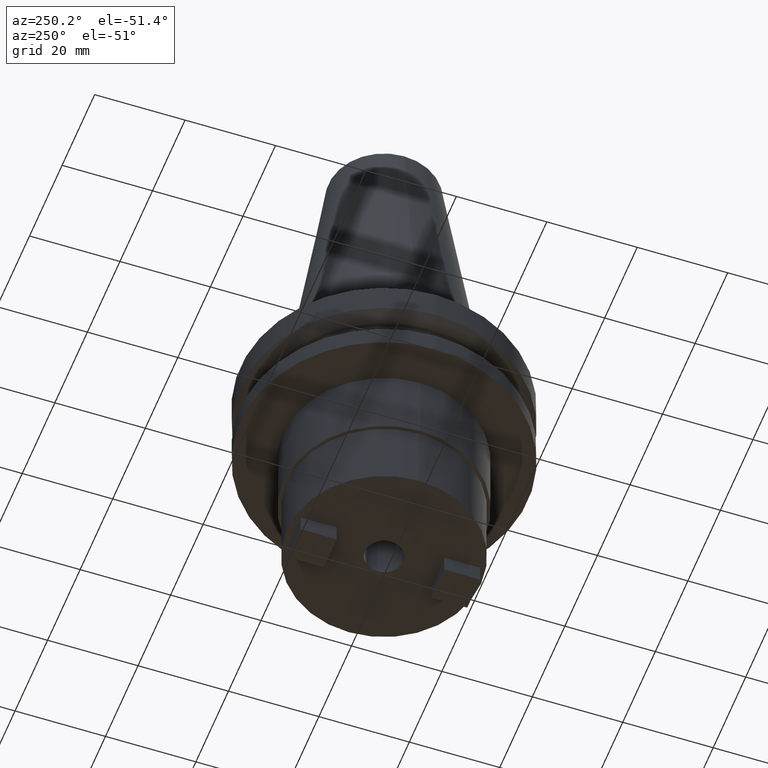
[diagram: clean part render]
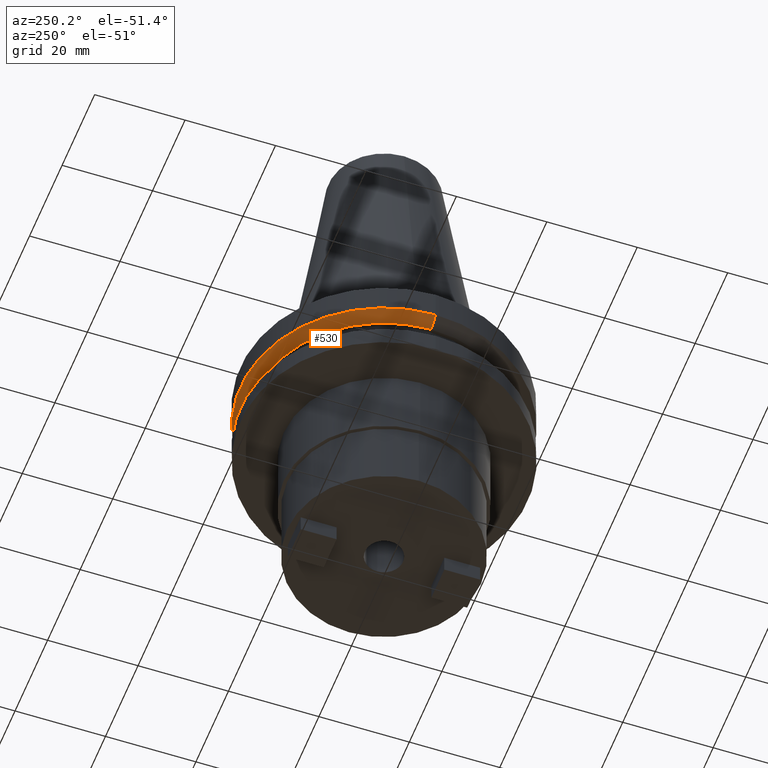
[diagram: same view with one face highlighted and labeled with its STEP entity id]
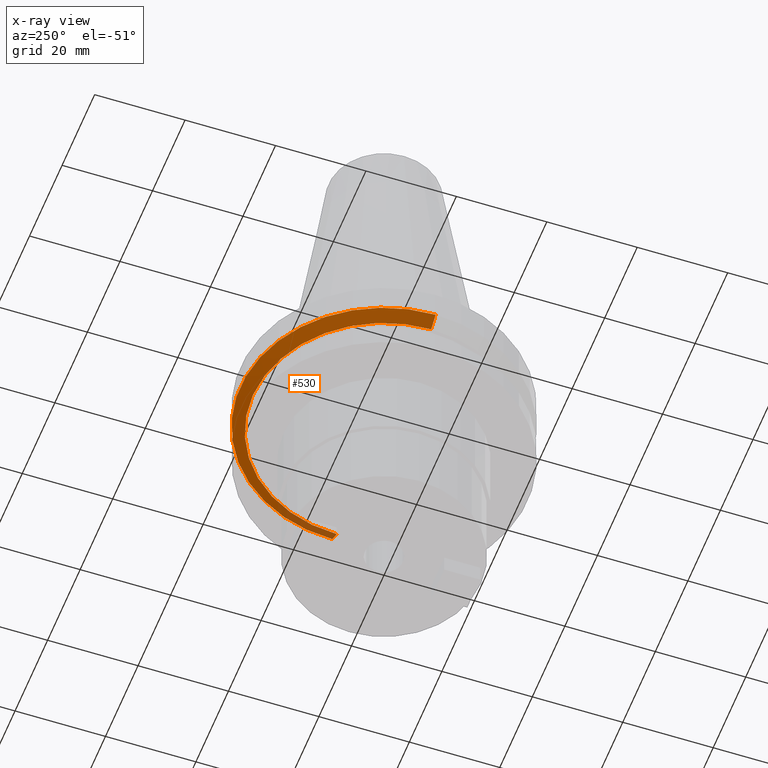
[diagram: x-ray of the same camera — body ghosted, the highlighted face saturated]
A machine part, auxiliary view. The second image highlights one B-rep face of the part: STEP entity #530.
The next image is the same camera in x-ray: the body ghosted, the highlighted face saturated — about 8% of this face is hidden behind the body in this view.
In plain terms, the highlighted conical surface has half-angle 60 deg.
Its self-contained STEP definition (entity closure, byte-faithful):
#23 = AXIS2_PLACEMENT_3D ( 'NONE', #1046, #454, #803 ) ;
#41 = CIRCLE ( 'NONE', #469, 31.75000000000000000 ) ;
#67 = DIRECTION ( 'NONE',  ( 0.8660254037844389297, 0.000000000000000000, 0.4999999999999995004 ) ) ;
#68 = VERTEX_POINT ( 'NONE', #155 ) ;
#76 = EDGE_CURVE ( 'NONE', #964, #218, #836, .T. ) ;
#90 = VECTOR ( 'NONE', #746, 1000.000000000000000 ) ;
#98 = EDGE_CURVE ( 'NONE', #68, #631, #996, .T. ) ;
#155 = CARTESIAN_POINT ( 'NONE',  ( -28.97919780457007732, 3.718590885307660666E-15, -9.205000000000005400 ) ) ;
#178 = ORIENTED_EDGE ( 'NONE', *, *, #98, .T. ) ;
#218 = VERTEX_POINT ( 'NONE', #1021 ) ;
#241 = CARTESIAN_POINT ( 'NONE',  ( -28.97919780457007732, 3.548928183322474856E-15, -9.205000000000005400 ) ) ;
#244 = CARTESIAN_POINT ( 'NONE',  ( 0.000000000000000000, 0.000000000000000000, -7.605276606597335842 ) ) ;
#305 = CARTESIAN_POINT ( 'NONE',  ( 28.97919780457007732, 0.000000000000000000, -9.205000000000005400 ) ) ;
#316 = FACE_OUTER_BOUND ( 'NONE', #736, .T. ) ;
#317 = CIRCLE ( 'NONE', #23, 28.97919780457007732 ) ;
#322 = DIRECTION ( 'NONE',  ( -0.000000000000000000, -0.000000000000000000, 1.000000000000000000 ) ) ;
#335 = AXIS2_PLACEMENT_3D ( 'NONE', #662, #322, #384 ) ;
#370 = EDGE_CURVE ( 'NONE', #964, #68, #317, .T. ) ;
#384 = DIRECTION ( 'NONE',  ( 1.000000000000000000, 0.000000000000000000, 0.000000000000000000 ) ) ;
#454 = DIRECTION ( 'NONE',  ( -0.000000000000000000, -0.000000000000000000, 1.000000000000000000 ) ) ;
#469 = AXIS2_PLACEMENT_3D ( 'NONE', #244, #563, #582 ) ;
#480 = ORIENTED_EDGE ( 'NONE', *, *, #370, .T. ) ;
#530 = ADVANCED_FACE ( 'NONE', ( #316 ), #954, .T. ) ;
#560 = EDGE_CURVE ( 'NONE', #218, #631, #41, .T. ) ;
#563 = DIRECTION ( 'NONE',  ( -0.000000000000000000, -0.000000000000000000, 1.000000000000000000 ) ) ;
#582 = DIRECTION ( 'NONE',  ( 1.000000000000000000, 0.000000000000000000, 0.000000000000000000 ) ) ;
#588 = CARTESIAN_POINT ( 'NONE',  ( -31.75000000000000000, 3.888253587292846476E-15, -7.605276606597335842 ) ) ;
#631 = VERTEX_POINT ( 'NONE', #588 ) ;
#662 = CARTESIAN_POINT ( 'NONE',  ( 0.000000000000000000, 0.000000000000000000, -9.205000000000005400 ) ) ;
#736 = EDGE_LOOP ( 'NONE', ( #480, #178, #891, #860 ) ) ;
#746 = DIRECTION ( 'NONE',  ( -0.8660254037844389297, 1.060575238724907285E-16, 0.4999999999999995004 ) ) ;
#803 = DIRECTION ( 'NONE',  ( 1.000000000000000000, 0.000000000000000000, 0.000000000000000000 ) ) ;
#824 = CARTESIAN_POINT ( 'NONE',  ( 28.97919780457007732, 0.000000000000000000, -9.205000000000005400 ) ) ;
#836 = LINE ( 'NONE', #824, #1037 ) ;
#860 = ORIENTED_EDGE ( 'NONE', *, *, #76, .F. ) ;
#891 = ORIENTED_EDGE ( 'NONE', *, *, #560, .F. ) ;
#954 = CONICAL_SURFACE ( 'NONE', #335, 28.97919780457007732, 1.047197551196598297 ) ;
#964 = VERTEX_POINT ( 'NONE', #305 ) ;
#996 = LINE ( 'NONE', #241, #90 ) ;
#1021 = CARTESIAN_POINT ( 'NONE',  ( 31.75000000000000000, 0.000000000000000000, -7.605276606597335842 ) ) ;
#1037 = VECTOR ( 'NONE', #67, 1000.000000000000000 ) ;
#1046 = CARTESIAN_POINT ( 'NONE',  ( 0.000000000000000000, 0.000000000000000000, -9.205000000000005400 ) ) ;